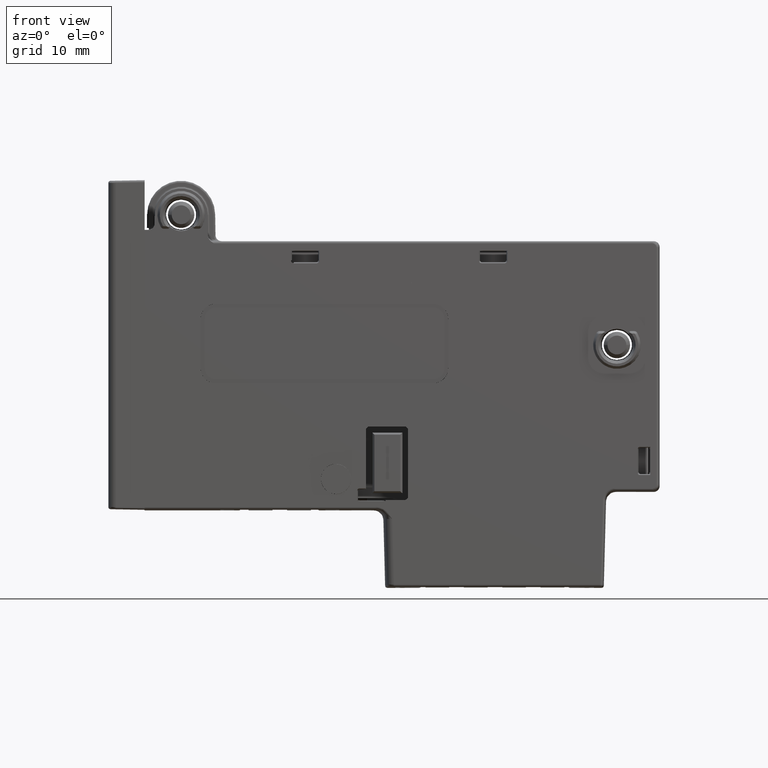
[diagram: clean part render]
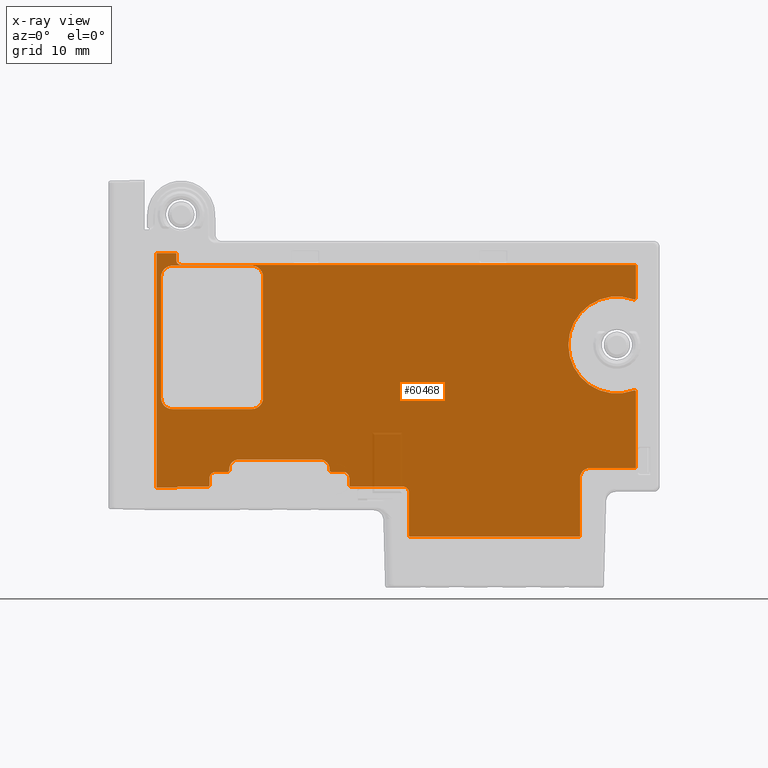
[diagram: x-ray — body ghosted, one internal face saturated and labeled with its STEP entity id]
A machine part, front view, then the same camera in x-ray: the body is ghosted and one INTERNAL B-rep face — a face not visible from any outside direction — is saturated and labeled: STEP entity #60468.
In plain terms, the highlighted planar face has unit normal (0, -1, 0).
Its self-contained STEP definition (entity closure, byte-faithful):
#54909=DIRECTION('',(1.E0,0.E0,0.E0));
#54910=VECTOR('',#54909,1.05E1);
#54911=CARTESIAN_POINT('',(-2.528364987200E1,6.538439077170E0,
2.801759247787E0));
#54912=LINE('',#54911,#54910);
#54913=CARTESIAN_POINT('',(-1.478364987200E1,6.538439077170E0,
4.301759247787E0));
#54914=DIRECTION('',(0.E0,-1.E0,0.E0));
#54915=DIRECTION('',(0.E0,0.E0,-1.E0));
#54916=AXIS2_PLACEMENT_3D('',#54913,#54914,#54915);
#54918=DIRECTION('',(0.E0,0.E0,1.E0));
#54919=VECTOR('',#54918,1.6E1);
#54920=CARTESIAN_POINT('',(-1.328364987200E1,6.538439077170E0,
4.301759247787E0));
#54921=LINE('',#54920,#54919);
#54922=CARTESIAN_POINT('',(-1.478364987200E1,6.538439077170E0,
2.030175924779E1));
#54923=DIRECTION('',(0.E0,-1.E0,0.E0));
#54924=DIRECTION('',(1.E0,0.E0,0.E0));
#54925=AXIS2_PLACEMENT_3D('',#54922,#54923,#54924);
#54927=DIRECTION('',(-1.E0,0.E0,0.E0));
#54928=VECTOR('',#54927,1.05E1);
#54929=CARTESIAN_POINT('',(-1.478364987200E1,6.538439077170E0,
2.180175924779E1));
#54930=LINE('',#54929,#54928);
#54931=CARTESIAN_POINT('',(-2.528364987200E1,6.538439077170E0,
2.030175924779E1));
#54932=DIRECTION('',(0.E0,-1.E0,0.E0));
#54933=DIRECTION('',(0.E0,0.E0,1.E0));
#54934=AXIS2_PLACEMENT_3D('',#54931,#54932,#54933);
#54936=DIRECTION('',(0.E0,0.E0,-1.E0));
#54937=VECTOR('',#54936,1.6E1);
#54938=CARTESIAN_POINT('',(-2.678364987200E1,6.538439077170E0,
2.030175924779E1));
#54939=LINE('',#54938,#54937);
#54940=CARTESIAN_POINT('',(-2.528364987200E1,6.538439077170E0,
4.301759247787E0));
#54941=DIRECTION('',(0.E0,-1.E0,0.E0));
#54942=DIRECTION('',(-1.E0,0.E0,0.E0));
#54943=AXIS2_PLACEMENT_3D('',#54940,#54941,#54942);
#54945=DIRECTION('',(-1.E0,-6.496474901361E-12,0.E0));
#54946=VECTOR('',#54945,2.246041210310E1);
#54947=CARTESIAN_POINT('',(2.869073411054E1,6.538439077170E0,
-1.410343157328E1));
#54948=LINE('',#54947,#54946);
#54949=CARTESIAN_POINT('',(6.230322007439E0,6.538439077024E0,
-1.410343157328E1));
#54950=CARTESIAN_POINT('',(6.208615062226E0,6.538439077024E0,
-1.410344755472E1));
#54951=CARTESIAN_POINT('',(6.167589706626E0,6.538439077238E0,
-1.409671731995E1));
#54952=CARTESIAN_POINT('',(6.110796761644E0,6.538439077152E0,
-1.406789223303E1));
#54953=CARTESIAN_POINT('',(6.065980127372E0,6.538439077175E0,
-1.402315060075E1));
#54954=CARTESIAN_POINT('',(6.037038592327E0,6.538439077169E0,
-1.396617100761E1));
#54955=CARTESIAN_POINT('',(6.030344479485E0,6.538439077170E0,
-1.392515579594E1));
#54956=CARTESIAN_POINT('',(6.030352468408E0,6.538439077170E0,
-1.390346203425E1));
#54958=DIRECTION('',(0.E0,3.961326167660E-14,1.E0));
#54959=VECTOR('',#54958,5.650152304844E0);
#54960=CARTESIAN_POINT('',(6.030352468408E0,6.538439077170E0,
-1.390346203425E1));
#54961=LINE('',#54960,#54959);
#54962=CARTESIAN_POINT('',(6.030352468408E0,6.538439077170E0,
-8.253309729403E0));
#54963=CARTESIAN_POINT('',(6.030394775323E0,6.538455482768E0,
-8.166361680950E0));
#54964=CARTESIAN_POINT('',(6.003438301824E0,6.538431425111E0,
-8.002045654254E0));
#54965=CARTESIAN_POINT('',(5.887830924525E0,6.538441250981E0,
-7.774520348424E0));
#54966=CARTESIAN_POINT('',(5.708227158472E0,6.538438033987E0,
-7.595197784243E0));
#54967=CARTESIAN_POINT('',(5.480747125714E0,6.538441076091E0,
-7.480087392870E0));
#54968=CARTESIAN_POINT('',(5.317017451735E0,6.538435108477E0,
-7.453439667495E0));
#54969=CARTESIAN_POINT('',(5.230474312283E0,6.538439077170E0,
-7.453431573278E0));
#54971=DIRECTION('',(-1.E0,-2.114348231063E-11,0.E0));
#54972=VECTOR('',#54971,6.901152304844E0);
#54973=CARTESIAN_POINT('',(5.230474312283E0,6.538439077170E0,
-7.453431573278E0));
#54974=LINE('',#54973,#54972);
#54975=CARTESIAN_POINT('',(-1.670677992561E0,6.538439077024E0,
-7.453431573278E0));
#54976=CARTESIAN_POINT('',(-1.692384937774E0,6.538439077024E0,
-7.453447554721E0));
#54977=CARTESIAN_POINT('',(-1.733410293374E0,6.538439077238E0,
-7.446717319955E0));
#54978=CARTESIAN_POINT('',(-1.790203238356E0,6.538439077152E0,
-7.417892233029E0));
#54979=CARTESIAN_POINT('',(-1.835019872628E0,6.538439077175E0,
-7.373150600754E0));
#54980=CARTESIAN_POINT('',(-1.863961407673E0,6.538439077169E0,
-7.316171007609E0));
#54981=CARTESIAN_POINT('',(-1.870655520515E0,6.538439077170E0,
-7.275155795944E0));
#54982=CARTESIAN_POINT('',(-1.870647531592E0,6.538439077170E0,
-7.253462034247E0));
#54984=DIRECTION('',(0.E0,3.552144195889E-13,1.E0));
#54985=VECTOR('',#54984,9.501523048436E-1);
#54986=CARTESIAN_POINT('',(-1.870647531592E0,6.538439077170E0,
-7.253462034247E0));
#54987=LINE('',#54986,#54985);
#54988=CARTESIAN_POINT('',(-1.870647531592E0,6.538439077170E0,
-6.303309729403E0));
#54989=CARTESIAN_POINT('',(-1.870653688590E0,6.538435902626E0,
-6.216983199507E0));
#54990=CARTESIAN_POINT('',(-1.897116444292E0,6.538440699817E0,
-6.053537119086E0));
#54991=CARTESIAN_POINT('',(-2.012424111661E0,6.538438159721E0,
-5.825467780818E0));
#54992=CARTESIAN_POINT('',(-2.191755621450E0,6.538441124317E0,
-5.645976408307E0));
#54993=CARTESIAN_POINT('',(-2.419063772277E0,6.538431806030E0,
-5.530413947289E0));
#54994=CARTESIAN_POINT('',(-2.583491271436E0,6.538454678399E0,
-5.503391189890E0));
#54995=CARTESIAN_POINT('',(-2.670525687717E0,6.538439077170E0,
-5.503431573278E0));
#54997=DIRECTION('',(-1.E0,-9.118781458412E-11,0.E0));
#54998=VECTOR('',#54997,1.600152304844E0);
#54999=CARTESIAN_POINT('',(-2.670525687717E0,6.538439077170E0,
-5.503431573278E0));
#55000=LINE('',#54999,#54998);
#55001=CARTESIAN_POINT('',(-4.270677992561E0,6.538439077024E0,
-5.503431573278E0));
#55002=CARTESIAN_POINT('',(-4.292384937774E0,6.538439077024E0,
-5.503447554721E0));
#55003=CARTESIAN_POINT('',(-4.333410293374E0,6.538439077238E0,
-5.496717319955E0));
#55004=CARTESIAN_POINT('',(-4.390203238356E0,6.538439077152E0,
-5.467892233029E0));
#55005=CARTESIAN_POINT('',(-4.435019872628E0,6.538439077175E0,
-5.423150600754E0));
#55006=CARTESIAN_POINT('',(-4.463961407673E0,6.538439077169E0,
-5.366171007609E0));
#55007=CARTESIAN_POINT('',(-4.470655520515E0,6.538439077170E0,
-5.325155795944E0));
#55008=CARTESIAN_POINT('',(-4.470647531592E0,6.538439077170E0,
-5.303462034247E0));
#55010=DIRECTION('',(-7.961986726772E-9,-5.684440609482E-5,9.999999983844E-1));
#55011=VECTOR('',#55010,1.502284573291E-1);
#55012=CARTESIAN_POINT('',(-4.470647531592E0,6.538439077170E0,
-5.303462034247E0));
#55013=LINE('',#55012,#55011);
#55014=CARTESIAN_POINT('',(-4.470647532788E0,6.538430537522E0,
-5.153233577160E0));
#55015=CARTESIAN_POINT('',(-4.470650936620E0,6.538429322235E0,
-5.037287992553E0));
#55016=CARTESIAN_POINT('',(-4.500481100222E0,6.538443604788E0,
-4.814176239285E0));
#55017=CARTESIAN_POINT('',(-4.631896775675E0,6.538437862910E0,
-4.495465241288E0));
#55018=CARTESIAN_POINT('',(-4.840725787455E0,6.538439406591E0,
-4.223817865811E0));
#55019=CARTESIAN_POINT('',(-5.112257529909E0,6.538438973746E0,
-4.014945369151E0));
#55020=CARTESIAN_POINT('',(-5.430599383901E0,6.538439161444E0,
-3.883487991826E0));
#55021=CARTESIAN_POINT('',(-5.654170311817E0,6.538438949479E0,
-3.853402219326E0));
#55022=CARTESIAN_POINT('',(-5.770449534602E0,6.538432665172E0,
-3.853431573940E0));
#55024=DIRECTION('',(-1.E0,-1.990315203862E-7,-4.996973151036E-11));
#55025=VECTOR('',#55024,1.069001435098E1);
#55026=CARTESIAN_POINT('',(-5.770449534602E0,6.538432665172E0,
-3.853431573940E0));
#55027=LINE('',#55026,#55025);
#55028=CARTESIAN_POINT('',(-1.646046388558E1,6.538430537522E0,
-3.853431574474E0));
#55029=CARTESIAN_POINT('',(-1.657640947019E1,6.538429322235E0,
-3.853434978306E0));
#55030=CARTESIAN_POINT('',(-1.679952122345E1,6.538443604788E0,
-3.883265141908E0));
#55031=CARTESIAN_POINT('',(-1.711823222145E1,6.538437862910E0,
-4.014680817361E0));
#55032=CARTESIAN_POINT('',(-1.738987959693E1,6.538439406591E0,
-4.223509829141E0));
#55033=CARTESIAN_POINT('',(-1.759875209359E1,6.538438973746E0,
-4.495041571595E0));
#55034=CARTESIAN_POINT('',(-1.773020947091E1,6.538439161444E0,
-4.813383425586E0));
#55035=CARTESIAN_POINT('',(-1.776029524341E1,6.538438949479E0,
-5.036954353503E0));
#55036=CARTESIAN_POINT('',(-1.776026588880E1,6.538432665172E0,
-5.153233576288E0));
#55038=DIRECTION('',(-4.406162207112E-9,4.268164665768E-5,-9.999999990891E-1));
#55039=VECTOR('',#55038,1.502284580955E-1);
#55040=CARTESIAN_POINT('',(-1.776026588880E1,6.538432665172E0,
-5.153233576288E0));
#55041=LINE('',#55040,#55039);
#55042=CARTESIAN_POINT('',(-1.776026588946E1,6.538439077170E0,
-5.303462034247E0));
#55043=CARTESIAN_POINT('',(-1.776024990802E1,6.538439077170E0,
-5.325168979460E0));
#55044=CARTESIAN_POINT('',(-1.776698014278E1,6.538439077170E0,
-5.366194335059E0));
#55045=CARTESIAN_POINT('',(-1.779580522971E1,6.538439077170E0,
-5.422987280042E0));
#55046=CARTESIAN_POINT('',(-1.784054686199E1,6.538439077170E0,
-5.467803914314E0));
#55047=CARTESIAN_POINT('',(-1.789752645513E1,6.538439077170E0,
-5.496745449359E0));
#55048=CARTESIAN_POINT('',(-1.793854166680E1,6.538439077170E0,
-5.503439562201E0));
#55049=CARTESIAN_POINT('',(-1.796023542849E1,6.538439077170E0,
-5.503431573278E0));
#55051=DIRECTION('',(-9.999999999999E-1,3.472968110450E-7,-3.955903183641E-12));
#55052=VECTOR('',#55051,1.600152304885E0);
#55053=CARTESIAN_POINT('',(-1.796023542849E1,6.538439077170E0,
-5.503431573278E0));
#55054=LINE('',#55053,#55052);
#55055=CARTESIAN_POINT('',(-1.956038773338E1,6.538439632898E0,
-5.503431573284E0));
#55056=CARTESIAN_POINT('',(-1.964671426327E1,6.538436458353E0,
-5.503437730282E0));
#55057=CARTESIAN_POINT('',(-1.981016034363E1,6.538440405446E0,
-5.529900485962E0));
#55058=CARTESIAN_POINT('',(-2.003822968193E1,6.538438356430E0,
-5.645208153393E0));
#55059=CARTESIAN_POINT('',(-2.021772105440E1,6.538440631853E0,
-5.824539662966E0));
#55060=CARTESIAN_POINT('',(-2.033328351555E1,6.538433579178E0,
-6.051847814596E0));
#55061=CARTESIAN_POINT('',(-2.036030627263E1,6.538450869363E0,
-6.216275311756E0));
#55062=CARTESIAN_POINT('',(-2.036026588925E1,6.538435268134E0,
-6.303309728037E0));
#55064=DIRECTION('',(-2.279990487575E-10,4.008869250469E-6,-9.999999999920E-1));
#55065=VECTOR('',#55064,9.501523062169E-1);
#55066=CARTESIAN_POINT('',(-2.036026588925E1,6.538435268134E0,
-6.303309728037E0));
#55067=LINE('',#55066,#55065);
#55068=CARTESIAN_POINT('',(-2.036026588946E1,6.538439077170E0,
-7.253462034247E0));
#55069=CARTESIAN_POINT('',(-2.036025789584E1,6.538439077170E0,
-7.275155328904E0));
#55070=CARTESIAN_POINT('',(-2.036695152596E1,6.538439077170E0,
-7.316169911165E0));
#55071=CARTESIAN_POINT('',(-2.039589401625E1,6.538439077170E0,
-7.373151340422E0));
#55072=CARTESIAN_POINT('',(-2.044070996883E1,6.538439077170E0,
-7.417891940370E0));
#55073=CARTESIAN_POINT('',(-2.049750276715E1,6.538439077170E0,
-7.446717236259E0));
#55074=CARTESIAN_POINT('',(-2.053852831092E1,6.538439077170E0,
-7.453447554370E0));
#55075=CARTESIAN_POINT('',(-2.056023542849E1,6.538439077170E0,
-7.453431573278E0));
#55077=DIRECTION('',(-1.E0,0.E0,0.E0));
#55078=VECTOR('',#55077,4.023355219892E0);
#55079=CARTESIAN_POINT('',(-2.056023542849E1,6.538439077170E0,
-7.453431573278E0));
#55080=LINE('',#55079,#55078);
#55081=DIRECTION('',(-7.071067811865E-1,0.E0,-7.071067811865E-1));
#55082=VECTOR('',#55081,2.121320343560E-1);
#55083=CARTESIAN_POINT('',(-2.458359064838E1,6.538439077170E0,
-7.453431573278E0));
#55084=LINE('',#55083,#55082);
#55085=DIRECTION('',(-1.E0,0.E0,0.E0));
#55086=VECTOR('',#55085,2.636056883208E0);
#55087=CARTESIAN_POINT('',(-2.473359064838E1,6.538439077170E0,
-7.603431573278E0));
#55088=LINE('',#55087,#55086);
#55089=DIRECTION('',(0.E0,0.E0,1.E0));
#55090=VECTOR('',#55089,3.106038164213E1);
#55091=CARTESIAN_POINT('',(-2.736964753159E1,6.538439077170E0,
-7.603431573278E0));
#55092=LINE('',#55091,#55090);
#55093=DIRECTION('',(1.E0,0.E0,0.E0));
#55094=VECTOR('',#55093,2.610381642131E0);
#55095=CARTESIAN_POINT('',(-2.736964753159E1,6.538439077170E0,
2.345695006885E1));
#55096=LINE('',#55095,#55094);
#55097=DIRECTION('',(0.E0,0.E0,-1.E0));
#55098=VECTOR('',#55097,9.500913829062E-1);
#55099=CARTESIAN_POINT('',(-2.475926588946E1,6.538439077170E0,
2.345695006885E1));
#55100=LINE('',#55099,#55098);
#55101=CARTESIAN_POINT('',(-2.475926588946E1,6.538439077170E0,
2.250685868595E1));
#55102=CARTESIAN_POINT('',(-2.475926829883E1,6.538441130725E0,
2.244181719840E1));
#55103=CARTESIAN_POINT('',(-2.473918775981E1,6.538438073276E0,
2.231881243930E1));
#55104=CARTESIAN_POINT('',(-2.465265051365E1,6.538439510468E0,
2.214810914804E1));
#55105=CARTESIAN_POINT('',(-2.451785607216E1,6.538438347871E0,
2.201342014598E1));
#55106=CARTESIAN_POINT('',(-2.434745171622E1,6.538441561067E0,
2.192708102448E1));
#55107=CARTESIAN_POINT('',(-2.422442477284E1,6.538433767610E0,
2.190695815439E1));
#55108=CARTESIAN_POINT('',(-2.415935727237E1,6.538439077170E0,
2.190695006885E1));
#55110=DIRECTION('',(1.E0,0.E0,0.E0));
#55111=VECTOR('',#55110,6.025009138291E1);
#55112=CARTESIAN_POINT('',(-2.415935727237E1,6.538439077170E0,
2.190695006885E1));
#55113=LINE('',#55112,#55111);
#55114=DIRECTION('',(7.526709894571E-12,0.E0,-1.E0));
#55115=VECTOR('',#55114,4.396339923798E0);
#55116=CARTESIAN_POINT('',(3.609073411054E1,6.538439077170E0,2.190695006885E1));
#55117=LINE('',#55116,#55115);
#55118=CARTESIAN_POINT('',(3.609073411058E1,6.538439077170E0,1.751061014505E1));
#55119=CARTESIAN_POINT('',(3.609073711667E1,6.538439077170E0,1.748845270738E1));
#55120=CARTESIAN_POINT('',(3.608378602766E1,6.538439077170E0,1.744662357655E1));
#55121=CARTESIAN_POINT('',(3.605353870996E1,6.538439077170E0,1.738846405819E1));
#55122=CARTESIAN_POINT('',(3.600670752626E1,6.538439077170E0,1.734348316697E1));
#55123=CARTESIAN_POINT('',(3.594818985377E1,6.538439077170E0,1.731541074876E1));
#55124=CARTESIAN_POINT('',(3.588347823551E1,6.538439077170E0,1.730741431017E1));
#55125=CARTESIAN_POINT('',(3.584171234944E1,6.538439077170E0,1.731546061937E1));
#55126=CARTESIAN_POINT('',(3.582087073463E1,6.538439077170E0,1.732325308413E1));
#55128=CARTESIAN_POINT('',(3.357454328947E1,6.538439077140E0,1.130175924779E1));
#55129=DIRECTION('',(0.E0,-1.E0,0.E0));
#55130=DIRECTION('',(3.495224176257E-1,0.E0,9.369280012771E-1));
#55131=AXIS2_PLACEMENT_3D('',#55128,#55129,#55130);
#55133=CARTESIAN_POINT('',(3.582087073461E1,6.538439077170E0,5.280265411513E0));
#55134=CARTESIAN_POINT('',(3.584171234851E1,6.538439077170E0,5.288057876065E0));
#55135=CARTESIAN_POINT('',(3.588347823331E1,6.538439077170E0,5.296104184941E0));
#55136=CARTESIAN_POINT('',(3.594818985219E1,6.538439077170E0,5.288107747532E0));
#55137=CARTESIAN_POINT('',(3.600670752479E1,6.538439077170E0,5.260035329561E0));
#55138=CARTESIAN_POINT('',(3.605353870896E1,6.538439077170E0,5.215054438637E0));
#55139=CARTESIAN_POINT('',(3.608378602706E1,6.538439077170E0,5.156894920948E0));
#55140=CARTESIAN_POINT('',(3.609073711677E1,6.538439077170E0,5.115065788996E0));
#55141=CARTESIAN_POINT('',(3.609073411058E1,6.538439077170E0,5.092908350520E0));
#55143=DIRECTION('',(-3.474476407217E-12,0.E0,-1.E0));
#55144=VECTOR('',#55143,1.009633992380E1);
#55145=CARTESIAN_POINT('',(3.609073411058E1,6.538439077170E0,5.092908350520E0));
#55146=LINE('',#55145,#55144);
#55147=DIRECTION('',(-9.999999999990E-1,-1.399896819326E-6,
-1.960775133736E-10));
#55148=VECTOR('',#55147,6.100197996126E0);
#55149=CARTESIAN_POINT('',(3.609073411054E1,6.538439077170E0,
-5.003431573278E0));
#55150=LINE('',#55149,#55148);
#55151=CARTESIAN_POINT('',(2.999053611442E1,6.538430537522E0,
-5.003431574474E0));
#55152=CARTESIAN_POINT('',(2.987459052981E1,6.538429322235E0,
-5.003434978306E0));
#55153=CARTESIAN_POINT('',(2.965147877655E1,6.538443599308E0,
-5.033265141908E0));
#55154=CARTESIAN_POINT('',(2.933276777855E1,6.538437882092E0,
-5.164680817363E0));
#55155=CARTESIAN_POINT('',(2.906112040308E1,6.538439335347E0,
-5.373509829133E0));
#55156=CARTESIAN_POINT('',(2.885224790638E1,6.538439239543E0,
-5.645041571623E0));
#55157=CARTESIAN_POINT('',(2.872079052919E1,6.538438169503E0,
-5.963383425479E0));
#55158=CARTESIAN_POINT('',(2.869070475637E1,6.538441086812E0,
-6.186954353734E0));
#55159=CARTESIAN_POINT('',(2.869073411098E1,6.538434802505E0,
-6.303233576519E0));
#55161=DIRECTION('',(-5.657461828125E-11,5.480201031290E-7,-9.999999999998E-1));
#55162=VECTOR('',#55161,7.800197996760E0);
#55163=CARTESIAN_POINT('',(2.869073411098E1,6.538434802505E0,
-6.303233576519E0));
#55164=LINE('',#55163,#55162);
#58807=CARTESIAN_POINT('',(-2.528364987200E1,6.538439077170E0,
2.801759247787E0));
#58808=CARTESIAN_POINT('',(-1.478364987200E1,6.538439077170E0,
2.801759247787E0));
#58809=VERTEX_POINT('',#58807);
#58810=VERTEX_POINT('',#58808);
#58811=CARTESIAN_POINT('',(-1.328364987200E1,6.538439077170E0,
4.301759247787E0));
#58812=CARTESIAN_POINT('',(-1.328364987200E1,6.538439077170E0,
2.030175924779E1));
#58813=VERTEX_POINT('',#58811);
#58814=VERTEX_POINT('',#58812);
#58815=CARTESIAN_POINT('',(-1.478364987200E1,6.538439077170E0,
2.180175924779E1));
#58816=CARTESIAN_POINT('',(-2.528364987200E1,6.538439077170E0,
2.180175924779E1));
#58817=VERTEX_POINT('',#58815);
#58818=VERTEX_POINT('',#58816);
#58819=CARTESIAN_POINT('',(-2.678364987200E1,6.538439077170E0,
2.030175924779E1));
#58820=CARTESIAN_POINT('',(-2.678364987200E1,6.538439077170E0,
4.301759247787E0));
#58821=VERTEX_POINT('',#58819);
#58822=VERTEX_POINT('',#58820);
#58925=CARTESIAN_POINT('',(2.869073411054E1,6.538439077170E0,
-1.410343157328E1));
#58926=CARTESIAN_POINT('',(6.230322007439E0,6.538439077024E0,
-1.410343157328E1));
#58927=VERTEX_POINT('',#58925);
#58928=VERTEX_POINT('',#58926);
#58935=CARTESIAN_POINT('',(3.609073411054E1,6.538439077170E0,
-5.003431573278E0));
#58936=CARTESIAN_POINT('',(2.999053611442E1,6.538430537522E0,
-5.003431574474E0));
#58937=VERTEX_POINT('',#58935);
#58938=VERTEX_POINT('',#58936);
#58939=CARTESIAN_POINT('',(3.609073411058E1,6.538439077170E0,5.092908350520E0));
#58940=VERTEX_POINT('',#58939);
#58943=VERTEX_POINT('',#55133);
#58945=CARTESIAN_POINT('',(3.582086925105E1,6.538439077140E0,1.732324910727E1));
#58946=VERTEX_POINT('',#58945);
#58949=VERTEX_POINT('',#55118);
#58951=CARTESIAN_POINT('',(3.609073411054E1,6.538439077170E0,2.190695006885E1));
#58952=VERTEX_POINT('',#58951);
#58957=CARTESIAN_POINT('',(-2.473359064838E1,6.538439077170E0,
-7.603431573278E0));
#58958=CARTESIAN_POINT('',(-2.736964753159E1,6.538439077170E0,
-7.603431573278E0));
#58959=VERTEX_POINT('',#58957);
#58960=VERTEX_POINT('',#58958);
#58961=CARTESIAN_POINT('',(-2.736964753159E1,6.538439077170E0,
2.345695006885E1));
#58962=VERTEX_POINT('',#58961);
#58967=CARTESIAN_POINT('',(-2.475926588946E1,6.538439077170E0,
2.345695006885E1));
#58968=VERTEX_POINT('',#58967);
#58973=CARTESIAN_POINT('',(-2.475926588946E1,6.538439077170E0,
2.250685868595E1));
#58974=VERTEX_POINT('',#58973);
#58979=VERTEX_POINT('',#55108);
#58983=CARTESIAN_POINT('',(-2.458359064838E1,6.538439077170E0,
-7.453431573278E0));
#58984=VERTEX_POINT('',#58983);
#58985=CARTESIAN_POINT('',(-2.056023542849E1,6.538439077170E0,
-7.453431573278E0));
#58986=VERTEX_POINT('',#58985);
#59070=CARTESIAN_POINT('',(-2.670525687717E0,6.538439077170E0,
-5.503431573278E0));
#59071=CARTESIAN_POINT('',(-4.270677992561E0,6.538439077024E0,
-5.503431573278E0));
#59072=VERTEX_POINT('',#59070);
#59073=VERTEX_POINT('',#59071);
#59078=VERTEX_POINT('',#54988);
#59080=CARTESIAN_POINT('',(-1.870647531592E0,6.538439077170E0,
-7.253462034247E0));
#59081=VERTEX_POINT('',#59080);
#59084=VERTEX_POINT('',#54975);
#59086=CARTESIAN_POINT('',(5.230474312283E0,6.538439077170E0,
-7.453431573278E0));
#59087=VERTEX_POINT('',#59086);
#59090=VERTEX_POINT('',#54962);
#59092=CARTESIAN_POINT('',(6.030352468408E0,6.538439077170E0,
-1.390346203425E1));
#59093=VERTEX_POINT('',#59092);
#59098=CARTESIAN_POINT('',(2.869073411098E1,6.538434802505E0,
-6.303233576519E0));
#59099=VERTEX_POINT('',#59098);
#59105=VERTEX_POINT('',#55068);
#59107=CARTESIAN_POINT('',(-2.036026588925E1,6.538435268134E0,
-6.303309728037E0));
#59108=VERTEX_POINT('',#59107);
#59111=VERTEX_POINT('',#55055);
#59113=CARTESIAN_POINT('',(-1.796023542849E1,6.538439077170E0,
-5.503431573278E0));
#59114=VERTEX_POINT('',#59113);
#59117=VERTEX_POINT('',#55042);
#59119=CARTESIAN_POINT('',(-1.776026588880E1,6.538432665172E0,
-5.153233576288E0));
#59120=VERTEX_POINT('',#59119);
#59123=VERTEX_POINT('',#55028);
#59125=CARTESIAN_POINT('',(-5.770449534602E0,6.538432665172E0,
-3.853431573940E0));
#59126=VERTEX_POINT('',#59125);
#59129=VERTEX_POINT('',#55014);
#59131=CARTESIAN_POINT('',(-4.470647531592E0,6.538439077170E0,
-5.303462034247E0));
#59132=VERTEX_POINT('',#59131);
#60371=CARTESIAN_POINT('',(9.235543289473E0,6.538439077170E0,5.901759247787E0));
#60372=DIRECTION('',(0.E0,-1.E0,0.E0));
#60373=DIRECTION('',(0.E0,0.E0,1.E0));
#60374=AXIS2_PLACEMENT_3D('',#60371,#60372,#60373);
#60375=PLANE('',#60374);
#60377=ORIENTED_EDGE('',*,*,#60376,.T.);
#60379=ORIENTED_EDGE('',*,*,#60378,.T.);
#60381=ORIENTED_EDGE('',*,*,#60380,.T.);
#60383=ORIENTED_EDGE('',*,*,#60382,.T.);
#60385=ORIENTED_EDGE('',*,*,#60384,.T.);
#60387=ORIENTED_EDGE('',*,*,#60386,.T.);
#60389=ORIENTED_EDGE('',*,*,#60388,.T.);
#60391=ORIENTED_EDGE('',*,*,#60390,.T.);
#60393=ORIENTED_EDGE('',*,*,#60392,.T.);
#60395=ORIENTED_EDGE('',*,*,#60394,.T.);
#60397=ORIENTED_EDGE('',*,*,#60396,.T.);
#60399=ORIENTED_EDGE('',*,*,#60398,.T.);
#60401=ORIENTED_EDGE('',*,*,#60400,.T.);
#60403=ORIENTED_EDGE('',*,*,#60402,.T.);
#60405=ORIENTED_EDGE('',*,*,#60404,.T.);
#60407=ORIENTED_EDGE('',*,*,#60406,.T.);
#60409=ORIENTED_EDGE('',*,*,#60408,.T.);
#60411=ORIENTED_EDGE('',*,*,#60410,.T.);
#60413=ORIENTED_EDGE('',*,*,#60412,.T.);
#60415=ORIENTED_EDGE('',*,*,#60414,.T.);
#60417=ORIENTED_EDGE('',*,*,#60416,.T.);
#60419=ORIENTED_EDGE('',*,*,#60418,.T.);
#60421=ORIENTED_EDGE('',*,*,#60420,.T.);
#60423=ORIENTED_EDGE('',*,*,#60422,.T.);
#60425=ORIENTED_EDGE('',*,*,#60424,.T.);
#60427=ORIENTED_EDGE('',*,*,#60426,.T.);
#60429=ORIENTED_EDGE('',*,*,#60428,.T.);
#60431=ORIENTED_EDGE('',*,*,#60430,.T.);
#60433=ORIENTED_EDGE('',*,*,#60432,.T.);
#60435=ORIENTED_EDGE('',*,*,#60434,.T.);
#60437=ORIENTED_EDGE('',*,*,#60436,.T.);
#60439=ORIENTED_EDGE('',*,*,#60438,.T.);
#60441=ORIENTED_EDGE('',*,*,#60440,.T.);
#60443=ORIENTED_EDGE('',*,*,#60442,.T.);
#60445=ORIENTED_EDGE('',*,*,#60444,.T.);
#60447=ORIENTED_EDGE('',*,*,#60446,.T.);
#60448=EDGE_LOOP('',(#60377,#60379,#60381,#60383,#60385,#60387,#60389,#60391,
#60393,#60395,#60397,#60399,#60401,#60403,#60405,#60407,#60409,#60411,#60413,
#60415,#60417,#60419,#60421,#60423,#60425,#60427,#60429,#60431,#60433,#60435,
#60437,#60439,#60441,#60443,#60445,#60447));
#60449=FACE_OUTER_BOUND('',#60448,.F.);
#60451=ORIENTED_EDGE('',*,*,#60450,.T.);
#60453=ORIENTED_EDGE('',*,*,#60452,.T.);
#60455=ORIENTED_EDGE('',*,*,#60454,.T.);
#60457=ORIENTED_EDGE('',*,*,#60456,.T.);
#60459=ORIENTED_EDGE('',*,*,#60458,.T.);
#60461=ORIENTED_EDGE('',*,*,#60460,.T.);
#60463=ORIENTED_EDGE('',*,*,#60462,.T.);
#60465=ORIENTED_EDGE('',*,*,#60464,.T.);
#60466=EDGE_LOOP('',(#60451,#60453,#60455,#60457,#60459,#60461,#60463,#60465));
#60467=FACE_BOUND('',#60466,.F.);
#60468=ADVANCED_FACE('',(#60449,#60467),#60375,.T.);
#54917=CIRCLE('',#54916,1.5E0);
#54926=CIRCLE('',#54925,1.5E0);
#54935=CIRCLE('',#54934,1.5E0);
#54944=CIRCLE('',#54943,1.5E0);
#54957=B_SPLINE_CURVE_WITH_KNOTS('',3,(#54949,#54950,#54951,#54952,#54953,
#54954,#54955,#54956),.UNSPECIFIED.,.F.,.F.,(4,1,1,1,1,4),(0.E0,2.E-1,4.E-1,
6.E-1,8.E-1,1.E0),.UNSPECIFIED.);
#54970=B_SPLINE_CURVE_WITH_KNOTS('',3,(#54962,#54963,#54964,#54965,#54966,
#54967,#54968,#54969),.UNSPECIFIED.,.F.,.F.,(4,1,1,1,1,4),(0.E0,2.E-1,4.E-1,
6.E-1,8.E-1,1.E0),.UNSPECIFIED.);
#54983=B_SPLINE_CURVE_WITH_KNOTS('',3,(#54975,#54976,#54977,#54978,#54979,
#54980,#54981,#54982),.UNSPECIFIED.,.F.,.F.,(4,1,1,1,1,4),(0.E0,2.E-1,4.E-1,
6.E-1,8.E-1,1.E0),.UNSPECIFIED.);
#54996=B_SPLINE_CURVE_WITH_KNOTS('',3,(#54988,#54989,#54990,#54991,#54992,
#54993,#54994,#54995),.UNSPECIFIED.,.F.,.F.,(4,1,1,1,1,4),(0.E0,2.E-1,4.E-1,
6.E-1,8.E-1,1.E0),.UNSPECIFIED.);
#55009=B_SPLINE_CURVE_WITH_KNOTS('',3,(#55001,#55002,#55003,#55004,#55005,
#55006,#55007,#55008),.UNSPECIFIED.,.F.,.F.,(4,1,1,1,1,4),(0.E0,2.E-1,4.E-1,
6.E-1,8.E-1,1.E0),.UNSPECIFIED.);
#55023=B_SPLINE_CURVE_WITH_KNOTS('',3,(#55014,#55015,#55016,#55017,#55018,
#55019,#55020,#55021,#55022),.UNSPECIFIED.,.F.,.F.,(4,1,1,1,1,1,4),(0.E0,
1.666666666667E-1,3.333333333333E-1,5.E-1,6.666666666667E-1,8.333333333333E-1,
1.E0),.UNSPECIFIED.);
#55037=B_SPLINE_CURVE_WITH_KNOTS('',3,(#55028,#55029,#55030,#55031,#55032,
#55033,#55034,#55035,#55036),.UNSPECIFIED.,.F.,.F.,(4,1,1,1,1,1,4),(0.E0,
1.666666666667E-1,3.333333333333E-1,5.E-1,6.666666666667E-1,8.333333333333E-1,
1.E0),.UNSPECIFIED.);
#55050=B_SPLINE_CURVE_WITH_KNOTS('',3,(#55042,#55043,#55044,#55045,#55046,
#55047,#55048,#55049),.UNSPECIFIED.,.F.,.F.,(4,1,1,1,1,4),(0.E0,2.E-1,4.E-1,
6.E-1,8.E-1,1.E0),.UNSPECIFIED.);
#55063=B_SPLINE_CURVE_WITH_KNOTS('',3,(#55055,#55056,#55057,#55058,#55059,
#55060,#55061,#55062),.UNSPECIFIED.,.F.,.F.,(4,1,1,1,1,4),(0.E0,2.E-1,4.E-1,
6.E-1,8.E-1,1.E0),.UNSPECIFIED.);
#55076=B_SPLINE_CURVE_WITH_KNOTS('',3,(#55068,#55069,#55070,#55071,#55072,
#55073,#55074,#55075),.UNSPECIFIED.,.F.,.F.,(4,1,1,1,1,4),(0.E0,2.E-1,4.E-1,
6.E-1,8.E-1,1.E0),.UNSPECIFIED.);
#55109=B_SPLINE_CURVE_WITH_KNOTS('',3,(#55101,#55102,#55103,#55104,#55105,
#55106,#55107,#55108),.UNSPECIFIED.,.F.,.F.,(4,1,1,1,1,4),(0.E0,2.E-1,4.E-1,
6.E-1,8.E-1,1.E0),.UNSPECIFIED.);
#55127=B_SPLINE_CURVE_WITH_KNOTS('',3,(#55118,#55119,#55120,#55121,#55122,
#55123,#55124,#55125,#55126),.UNSPECIFIED.,.F.,.F.,(4,1,1,1,1,1,4),(0.E0,
1.666666666667E-1,3.333333333333E-1,5.E-1,6.666666666667E-1,8.333333333333E-1,
1.E0),.UNSPECIFIED.);
#55132=CIRCLE('',#55131,6.426843739617E0);
#55142=B_SPLINE_CURVE_WITH_KNOTS('',3,(#55133,#55134,#55135,#55136,#55137,
#55138,#55139,#55140,#55141),.UNSPECIFIED.,.F.,.F.,(4,1,1,1,1,1,4),(0.E0,
1.666666666667E-1,3.333333333333E-1,5.E-1,6.666666666667E-1,8.333333333333E-1,
1.E0),.UNSPECIFIED.);
#55160=B_SPLINE_CURVE_WITH_KNOTS('',3,(#55151,#55152,#55153,#55154,#55155,
#55156,#55157,#55158,#55159),.UNSPECIFIED.,.F.,.F.,(4,1,1,1,1,1,4),(0.E0,
1.666666666667E-1,3.333333333333E-1,5.E-1,6.666666666667E-1,8.333333333333E-1,
1.E0),.UNSPECIFIED.);
#60376=EDGE_CURVE('',#58927,#58928,#54948,.T.);
#60378=EDGE_CURVE('',#58928,#59093,#54957,.T.);
#60380=EDGE_CURVE('',#59093,#59090,#54961,.T.);
#60382=EDGE_CURVE('',#59090,#59087,#54970,.T.);
#60384=EDGE_CURVE('',#59087,#59084,#54974,.T.);
#60386=EDGE_CURVE('',#59084,#59081,#54983,.T.);
#60388=EDGE_CURVE('',#59081,#59078,#54987,.T.);
#60390=EDGE_CURVE('',#59078,#59072,#54996,.T.);
#60392=EDGE_CURVE('',#59072,#59073,#55000,.T.);
#60394=EDGE_CURVE('',#59073,#59132,#55009,.T.);
#60396=EDGE_CURVE('',#59132,#59129,#55013,.T.);
#60398=EDGE_CURVE('',#59129,#59126,#55023,.T.);
#60400=EDGE_CURVE('',#59126,#59123,#55027,.T.);
#60402=EDGE_CURVE('',#59123,#59120,#55037,.T.);
#60404=EDGE_CURVE('',#59120,#59117,#55041,.T.);
#60406=EDGE_CURVE('',#59117,#59114,#55050,.T.);
#60408=EDGE_CURVE('',#59114,#59111,#55054,.T.);
#60410=EDGE_CURVE('',#59111,#59108,#55063,.T.);
#60412=EDGE_CURVE('',#59108,#59105,#55067,.T.);
#60414=EDGE_CURVE('',#59105,#58986,#55076,.T.);
#60416=EDGE_CURVE('',#58986,#58984,#55080,.T.);
#60418=EDGE_CURVE('',#58984,#58959,#55084,.T.);
#60420=EDGE_CURVE('',#58959,#58960,#55088,.T.);
#60422=EDGE_CURVE('',#58960,#58962,#55092,.T.);
#60424=EDGE_CURVE('',#58962,#58968,#55096,.T.);
#60426=EDGE_CURVE('',#58968,#58974,#55100,.T.);
#60428=EDGE_CURVE('',#58974,#58979,#55109,.T.);
#60430=EDGE_CURVE('',#58979,#58952,#55113,.T.);
#60432=EDGE_CURVE('',#58952,#58949,#55117,.T.);
#60434=EDGE_CURVE('',#58949,#58946,#55127,.T.);
#60436=EDGE_CURVE('',#58946,#58943,#55132,.T.);
#60438=EDGE_CURVE('',#58943,#58940,#55142,.T.);
#60440=EDGE_CURVE('',#58940,#58937,#55146,.T.);
#60442=EDGE_CURVE('',#58937,#58938,#55150,.T.);
#60444=EDGE_CURVE('',#58938,#59099,#55160,.T.);
#60446=EDGE_CURVE('',#59099,#58927,#55164,.T.);
#60450=EDGE_CURVE('',#58809,#58810,#54912,.T.);
#60452=EDGE_CURVE('',#58810,#58813,#54917,.T.);
#60454=EDGE_CURVE('',#58813,#58814,#54921,.T.);
#60456=EDGE_CURVE('',#58814,#58817,#54926,.T.);
#60458=EDGE_CURVE('',#58817,#58818,#54930,.T.);
#60460=EDGE_CURVE('',#58818,#58821,#54935,.T.);
#60462=EDGE_CURVE('',#58821,#58822,#54939,.T.);
#60464=EDGE_CURVE('',#58822,#58809,#54944,.T.);